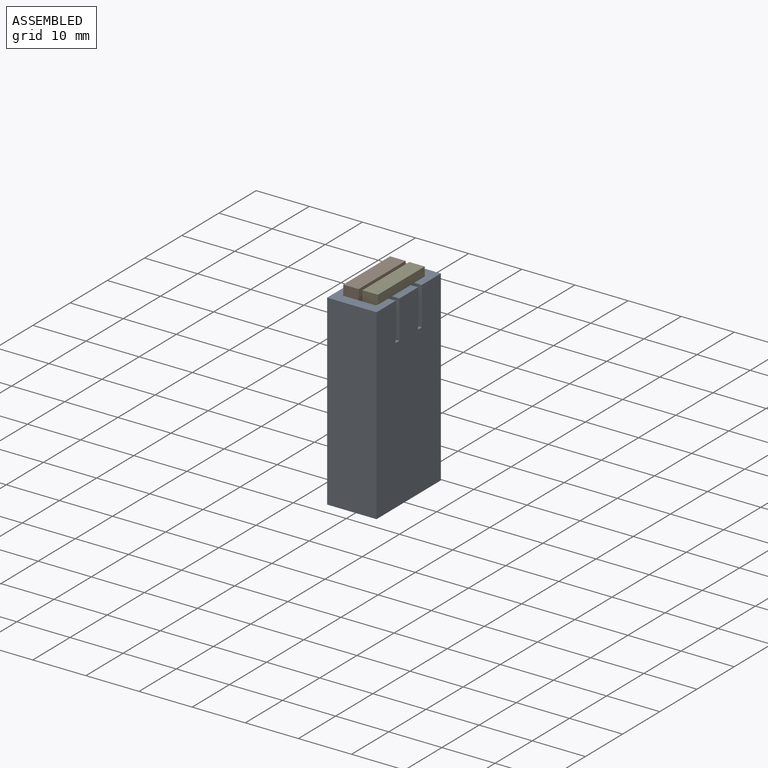
[diagram: assembled view]
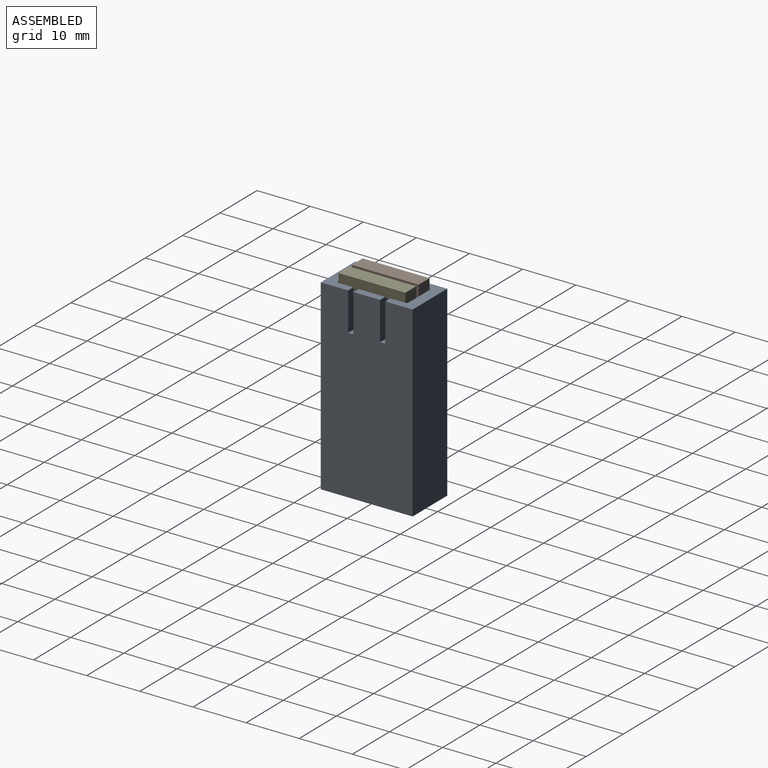
[diagram: assembled view, second angle]
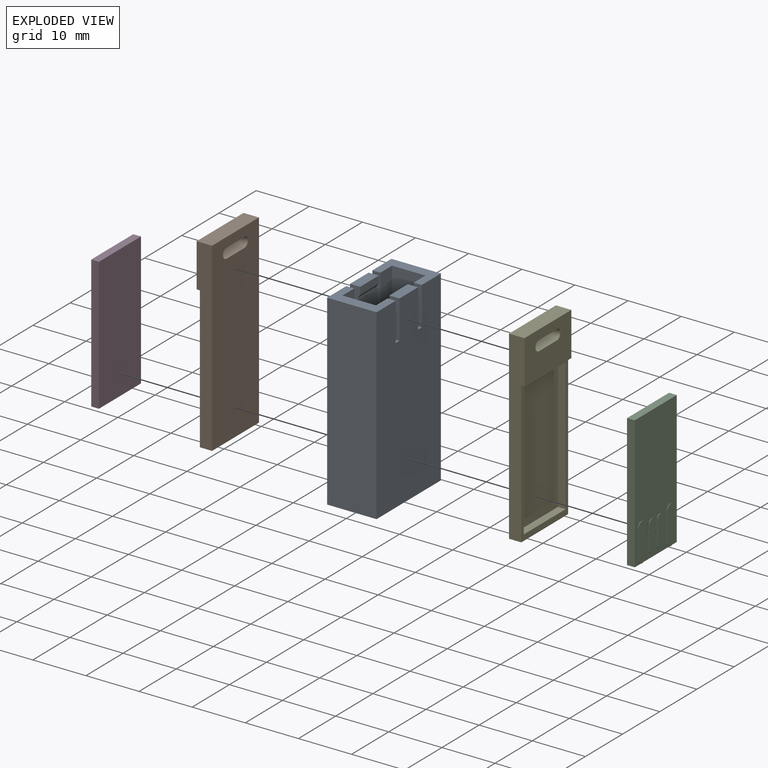
[diagram: exploded view]
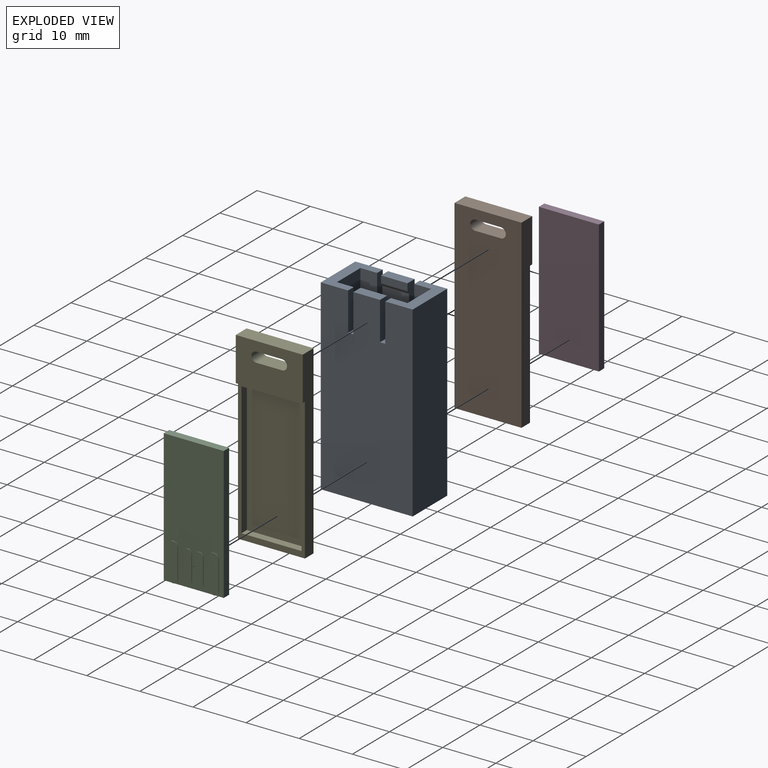
[diagram: exploded view, second angle]
ASSEMBLY  parts=5 mates=4
PART A: 38 faces, bbox 9.3x17.3x35.2 mm
  f0: plane 13.3x2mm, normal (0,0,1), area 9.6mm2, adj f2,f5,f9,f10,f12,f17,f18,f29
  f1: plane 13.3x2mm, normal (0,0,1), area 9.6mm2, adj f3,f7,f10,f11,f12,f14,f15,f30
  f2: plane 5.15x5mm, normal (1,0,0), area 25.7mm2, adj f0,f17,f18,f24
  f3: plane 5.15x5mm, normal (-1,0,0), area 25.7mm2, adj f1,f14,f15,f20
  f4: plane 35.2x9.3mm, normal (0,1,0), area 327.4mm2, adj f5,f7,f8,f28
  f5: plane 35.2x17.3mm, normal (-1,0,0), area 594.6mm2, adj f0,f4,f6,f8,f17,f18,f19,f28
  f6: plane 35.2x9.3mm, normal (0,-1,0), area 327.4mm2, adj f5,f7,f8,f33
  f7: plane 35.2x17.3mm, normal (1,0,0), area 594.6mm2, adj f1,f4,f6,f8,f14,f15,f16,f28
  f8: plane 17.3x9.3mm, normal (0,0,-1), area 160.9mm2, adj f4,f5,f6,f7
  f9: plane 26x13.3mm, normal (1,0,0), area 345.8mm2, adj f0,f10,f12,f13
  f10: plane 33.2x6.3mm, normal (0,-1,0), area 183.2mm2, adj f0,f1,f9,f11,f13,f28,f29,f30
  f11: plane 26x13.3mm, normal (-1,0,0), area 345.8mm2, adj f1,f10,f12,f13
  f12: plane 33.2x6.3mm, normal (0,1,0), area 183.2mm2, adj f0,f1,f9,f11,f13,f33,f35,f36
  f13: plane 13.3x5.3mm, normal (0,0,1), area 70.5mm2, adj f9,f10,f11,f12
  f14: plane 7.2x1.9mm, normal (0,1,0), area 11.5mm2, adj f1,f3,f7,f16,f20,f21,f22,f23
  f15: plane 7.2x1.9mm, normal (0,-1,0), area 11.5mm2, adj f1,f3,f7,f16,f20,f21,f22,f23
  f16: plane 5x1.9mm, normal (0,0,1), area 9.5mm2, adj f7,f14,f15,f21
  f17: plane 7.2x1.9mm, normal (0,1,0), area 11.5mm2, adj f0,f2,f5,f19,f24,f25,f26,f27
  f18: plane 7.2x1.9mm, normal (0,-1,0), area 11.5mm2, adj f0,f2,f5,f19,f24,f25,f26,f27
  f19: plane 5x1.9mm, normal (0,0,1), area 9.5mm2, adj f5,f17,f18,f27
  f20: cylinder r=0.5mm len=5mm, axis (0,-1,0), area 2.4mm2, adj f3,f14,f15,f23
  f21: plane 5x1.25mm, normal (-1,0,0), area 6.3mm2, adj f14,f15,f16,f22
  f22: cylinder r=0.5mm len=5mm, axis (0,-1,0), area 2.4mm2, adj f14,f15,f21,f23
  f23: plane 5x0.04mm, normal (0.56,0,0.83), area 0.2mm2, adj f14,f15,f20,f22
  f24: cylinder r=0.5mm len=5mm, axis (0,-1,0), area 2.4mm2, adj f2,f17,f18,f25
  f25: plane 5x0.04mm, normal (-0.56,0,0.83), area 0.2mm2, adj f17,f18,f24,f26
  f26: cylinder r=0.5mm len=5mm, axis (0,-1,0), area 2.4mm2, adj f17,f18,f25,f27
  f27: plane 5x1.25mm, normal (1,0,0), area 6.3mm2, adj f17,f18,f19,f26
  f28: plane 9.3x5.15mm, normal (0,0,1), area 28mm2, adj f4,f5,f7,f10,f29,f30,f31,f32
  f29: plane 7.2x3.15mm, normal (1,0,0), area 22.7mm2, adj f0,f10,f28,f32
  f30: plane 7.2x3.15mm, normal (-1,0,0), area 22.7mm2, adj f1,f10,f28,f31
  f31: plane 7.2x1.5mm, normal (0,-1,0), area 10.8mm2, adj f1,f7,f28,f30
  f32: plane 7.2x1.5mm, normal (0,-1,0), area 10.8mm2, adj f0,f5,f28,f29
  f33: plane 9.3x5.15mm, normal (0,0,1), area 28mm2, adj f5,f6,f7,f12,f34,f35,f36,f37
  f34: plane 7.2x1.5mm, normal (0,1,0), area 10.8mm2, adj f1,f7,f33,f35
  f35: plane 7.2x3.15mm, normal (-1,0,0), area 22.7mm2, adj f1,f12,f33,f34
  f36: plane 7.2x3.15mm, normal (1,0,0), area 22.7mm2, adj f0,f12,f33,f37
  f37: plane 7.2x1.5mm, normal (0,1,0), area 10.8mm2, adj f0,f5,f33,f36
PART B: 17 faces, bbox 12.6x34.9x2.9 mm
  f0: plane 34.9x12.6mm, normal (0,0,-1), area 427.8mm2, adj f3,f6,f7,f8,f13,f14,f15,f16
  f1: plane 12.6x8.2mm, normal (0,0,1), area 91.4mm2, adj f3,f6,f8,f12,f13,f14,f15,f16
  f2: plane 26.7x12.6mm, normal (0,0,1), area 53.9mm2, adj f3,f4,f5,f7,f8,f9,f10,f12
  f3: plane 34.9x2.9mm, normal (-1,0,0), area 85.2mm2, adj f0,f1,f2,f6,f7,f12
  f4: plane 25x1.45mm, normal (-1,0,0), area 36.2mm2, adj f2,f5,f9,f11
  f5: plane 11.3x1.45mm, normal (0,-1,0), area 16.4mm2, adj f2,f4,f10,f11
  f6: plane 12.6x2.9mm, normal (0,-1,0), area 36.5mm2, adj f0,f1,f3,f8
  f7: plane 12.6x2.3mm, normal (0,1,0), area 29mm2, adj f0,f2,f3,f8
  f8: plane 34.9x2.9mm, normal (1,0,0), area 85.2mm2, adj f0,f1,f2,f6,f7,f12
  f9: plane 11.3x1.45mm, normal (0,1,0), area 16.4mm2, adj f2,f4,f10,f11
  f10: plane 25x1.45mm, normal (1,0,0), area 36.2mm2, adj f2,f5,f9,f11
  f11: plane 25x11.3mm, normal (0,0,1), area 282.5mm2, adj f4,f5,f9,f10
  f12: plane 12.6x0.6mm, normal (0,1,0), area 7.6mm2, adj f1,f2,f3,f8
  f13: plane 4.8x2.9mm, normal (0,-1,0), area 13.9mm2, adj f0,f1,f14,f16
  f14: cylinder r=0.95mm len=2.9mm, axis (0,0,1), area 8.7mm2, adj f0,f1,f13,f15
  f15: plane 4.8x2.9mm, normal (0,1,0), area 13.9mm2, adj f0,f1,f14,f16
  f16: cylinder r=0.95mm len=2.9mm, axis (0,0,1), area 8.7mm2, adj f0,f1,f13,f15
PART C: 26 faces, bbox 11.3x25x1.6 mm
  f0: plane 25x11.3mm, normal (0,0,1), area 240.9mm2, adj f1,f2,f3,f4,f6,f7,f8,f9
  f1: plane 25x1.45mm, normal (-1,0,0), area 36.2mm2, adj f0,f2,f4,f5
  f2: plane 11.3x1.45mm, normal (0,-1,0), area 16.4mm2, adj f0,f1,f3,f5
  f3: plane 25x1.45mm, normal (1,0,0), area 36.2mm2, adj f0,f2,f4,f5
  f4: plane 11.3x1.45mm, normal (0,1,0), area 16.4mm2, adj f0,f1,f3,f5
  f5: plane 25x11.3mm, normal (0,0,-1), area 282.5mm2, adj f1,f2,f3,f4
  f6: plane 5.4x0.1mm, normal (1,0,0), area 0.5mm2, adj f0,f7,f9,f10
  f7: cylinder r=0.9mm len=1.8mm, axis (0,0,-1), area 0.3mm2, adj f0,f6,f8,f10
  f8: plane 5.4x0.1mm, normal (-1,0,0), area 0.5mm2, adj f0,f7,f9,f10
  f9: cylinder r=0.9mm len=1.8mm, axis (0,0,-1), area 0.3mm2, adj f0,f6,f8,f10
  f10: plane 7.2x1.8mm, normal (0,0,1), area 12.3mm2, adj f6,f7,f8,f9
  f11: cylinder r=0.75mm len=1.5mm, axis (0,0,-1), area 0.2mm2, adj f0,f12,f14,f15
  f12: plane 4.5x0.1mm, normal (-1,0,0), area 0.5mm2, adj f0,f11,f13,f15
  f13: cylinder r=0.75mm len=1.5mm, axis (0,0,-1), area 0.2mm2, adj f0,f12,f14,f15
  f14: plane 4.5x0.1mm, normal (1,0,0), area 0.5mm2, adj f0,f11,f13,f15
  f15: plane 6x1.5mm, normal (0,0,1), area 8.5mm2, adj f11,f12,f13,f14
  f16: cylinder r=0.9mm len=1.8mm, axis (0,0,-1), area 0.3mm2, adj f0,f17,f19,f20
  f17: plane 5.4x0.1mm, normal (-1,0,0), area 0.5mm2, adj f0,f16,f18,f20
  f18: cylinder r=0.9mm len=1.8mm, axis (0,0,-1), area 0.3mm2, adj f0,f17,f19,f20
  f19: plane 5.4x0.1mm, normal (1,0,0), area 0.5mm2, adj f0,f16,f18,f20
  f20: plane 7.2x1.8mm, normal (0,0,1), area 12.3mm2, adj f16,f17,f18,f19
  f21: cylinder r=0.75mm len=1.5mm, axis (0,0,-1), area 0.2mm2, adj f0,f22,f24,f25
  f22: plane 4.5x0.1mm, normal (-1,0,0), area 0.5mm2, adj f0,f21,f23,f25
  f23: cylinder r=0.75mm len=1.5mm, axis (0,0,-1), area 0.2mm2, adj f0,f22,f24,f25
  f24: plane 4.5x0.1mm, normal (1,0,0), area 0.5mm2, adj f0,f21,f23,f25
  f25: plane 6x1.5mm, normal (0,0,1), area 8.5mm2, adj f21,f22,f23,f24
PART D: same geometry as C
PART E: same geometry as B
PLACE A t=(-29.91,0.01,-0.7)mm
PLACE B rot(axis=(-0.58,-0.58,0.58),120deg) t=(-31.11,0.01,12.9)mm
PLACE C rot(axis=(-0.58,0.58,-0.58),120deg) t=(-28.71,0.01,12.9)mm
PLACE D rot(axis=(-0.58,-0.58,0.58),120deg) t=(-31.11,0.01,12.9)mm
PLACE E rot(axis=(-0.58,0.58,-0.58),120deg) t=(-28.71,0.01,12.9)mm
MATE fastened D.f5 <-> B.f11  axis (1,0,0) through (-31.11,0.01,12.9)mm
MATE planar E.f2 <-> A.f11  axis (1,0,0) through (-27.26,0.01,-0.7)mm
MATE planar B.f2 <-> A.f9  axis (-1,0,0) through (-32.56,0.01,-0.7)mm
MATE fastened C.f5 <-> E.f11  axis (-1,0,0) through (-28.71,0.01,12.9)mm
